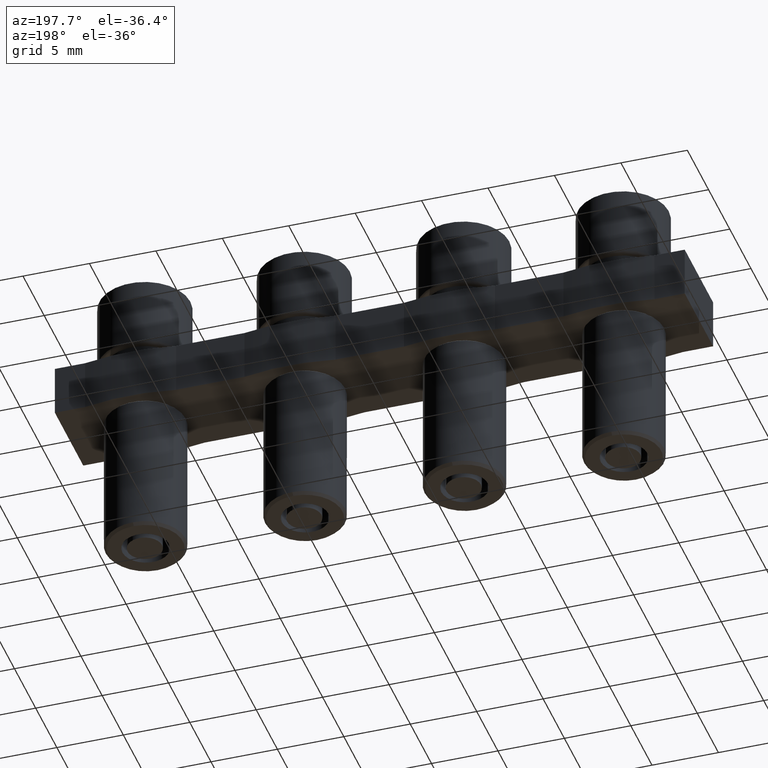
[diagram: clean part render]
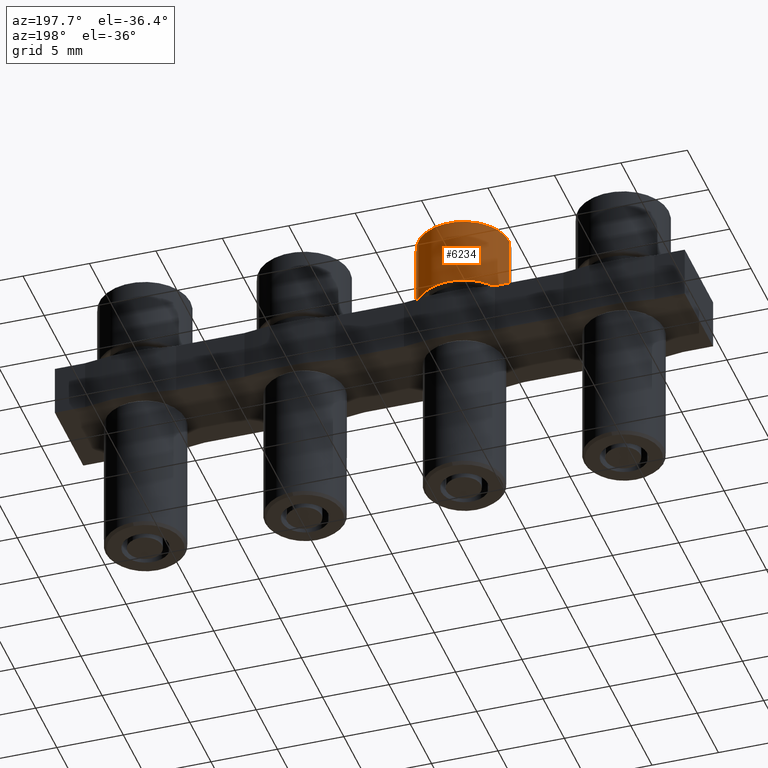
[diagram: same view with one face highlighted and labeled with its STEP entity id]
A machine part, auxiliary view. The second image highlights one B-rep face of the part: STEP entity #6234.
In plain terms, the highlighted cylindrical surface (partial cylindrical patch) has radius 3.425 mm, axis along (-0, -0, -1).
Its self-contained STEP definition (entity closure, byte-faithful):
#378 = AXIS2_PLACEMENT_3D ( 'NONE', #5817, #5822, #5818 ) ;
#513 = VERTEX_POINT ( 'NONE', #2196 ) ;
#858 = EDGE_LOOP ( 'NONE', ( #2618, #2571, #2572, #2605 ) ) ;
#1089 = VERTEX_POINT ( 'NONE', #1268 ) ;
#1141 = VERTEX_POINT ( 'NONE', #1357 ) ;
#1182 = VERTEX_POINT ( 'NONE', #1368 ) ;
#1268 = CARTESIAN_POINT ( 'NONE',  ( -15.42499999999999700, -2.289291466493766400E-015, 0.1999999999999996500 ) ) ;
#1357 = CARTESIAN_POINT ( 'NONE',  ( -8.575000000000002800, -1.869849937785798600E-015, 0.1999999999999996500 ) ) ;
#1368 = CARTESIAN_POINT ( 'NONE',  ( -8.575000000000002800, -1.869849937785798600E-015, 5.400000000000000400 ) ) ;
#2109 = CARTESIAN_POINT ( 'NONE',  ( -15.42499999999999700, -2.289291466493766400E-015, 5.400000000000000400 ) ) ;
#2112 = LINE ( 'NONE', #2109, #5152 ) ;
#2129 = DIRECTION ( 'NONE',  ( -0.0000000000000000000, -0.0000000000000000000, -1.000000000000000000 ) ) ;
#2147 = DIRECTION ( 'NONE',  ( -0.0000000000000000000, -0.0000000000000000000, -1.000000000000000000 ) ) ;
#2155 = CARTESIAN_POINT ( 'NONE',  ( -12.00000000000000000, -2.289291466493766400E-015, 5.400000000000000400 ) ) ;
#2162 = DIRECTION ( 'NONE',  ( 1.000000000000000000, 0.0000000000000000000, 0.0000000000000000000 ) ) ;
#2173 = CARTESIAN_POINT ( 'NONE',  ( -12.00000000000000000, -2.289291466493766400E-015, 0.1999999999999996500 ) ) ;
#2177 = DIRECTION ( 'NONE',  ( -0.0000000000000000000, -0.0000000000000000000, -1.000000000000000000 ) ) ;
#2179 = DIRECTION ( 'NONE',  ( -1.000000000000000000, 0.0000000000000000000, 0.0000000000000000000 ) ) ;
#2196 = CARTESIAN_POINT ( 'NONE',  ( -15.42499999999999700, -2.289291466493766400E-015, 5.400000000000000400 ) ) ;
#2571 = ORIENTED_EDGE ( 'NONE', *, *, #4660, .T. ) ;
#2572 = ORIENTED_EDGE ( 'NONE', *, *, #4647, .F. ) ;
#2605 = ORIENTED_EDGE ( 'NONE', *, *, #4630, .F. ) ;
#2618 = ORIENTED_EDGE ( 'NONE', *, *, #4649, .T. ) ;
#4444 = DIRECTION ( 'NONE',  ( -0.0000000000000000000, -0.0000000000000000000, -1.000000000000000000 ) ) ;
#4450 = LINE ( 'NONE', #4467, #5199 ) ;
#4467 = CARTESIAN_POINT ( 'NONE',  ( -8.575000000000002800, -1.869849937785798600E-015, 5.400000000000000400 ) ) ;
#4630 = EDGE_CURVE ( 'NONE', #513, #1089, #2112, .T. ) ;
#4647 = EDGE_CURVE ( 'NONE', #1089, #1141, #5225, .T. ) ;
#4649 = EDGE_CURVE ( 'NONE', #513, #1182, #5218, .T. ) ;
#4660 = EDGE_CURVE ( 'NONE', #1182, #1141, #4450, .T. ) ;
#5152 = VECTOR ( 'NONE', #2129, 1000.000000000000000 ) ;
#5186 = AXIS2_PLACEMENT_3D ( 'NONE', #2173, #2147, #2162 ) ;
#5199 = VECTOR ( 'NONE', #4444, 1000.000000000000000 ) ;
#5218 = CIRCLE ( 'NONE', #5239, 3.424999999999997600 ) ;
#5225 = CIRCLE ( 'NONE', #5186, 3.424999999999997600 ) ;
#5239 = AXIS2_PLACEMENT_3D ( 'NONE', #2155, #2177, #2179 ) ;
#5816 = CYLINDRICAL_SURFACE ( 'NONE', #378, 3.424999999999997600 ) ;
#5817 = CARTESIAN_POINT ( 'NONE',  ( -12.00000000000000000, -2.289291466493766400E-015, 5.400000000000000400 ) ) ;
#5818 = DIRECTION ( 'NONE',  ( -1.000000000000000000, 0.0000000000000000000, 0.0000000000000000000 ) ) ;
#5821 = FACE_OUTER_BOUND ( 'NONE', #858, .T. ) ;
#5822 = DIRECTION ( 'NONE',  ( -0.0000000000000000000, -0.0000000000000000000, -1.000000000000000000 ) ) ;
#6234 = ADVANCED_FACE ( 'NONE', ( #5821 ), #5816, .T. ) ;